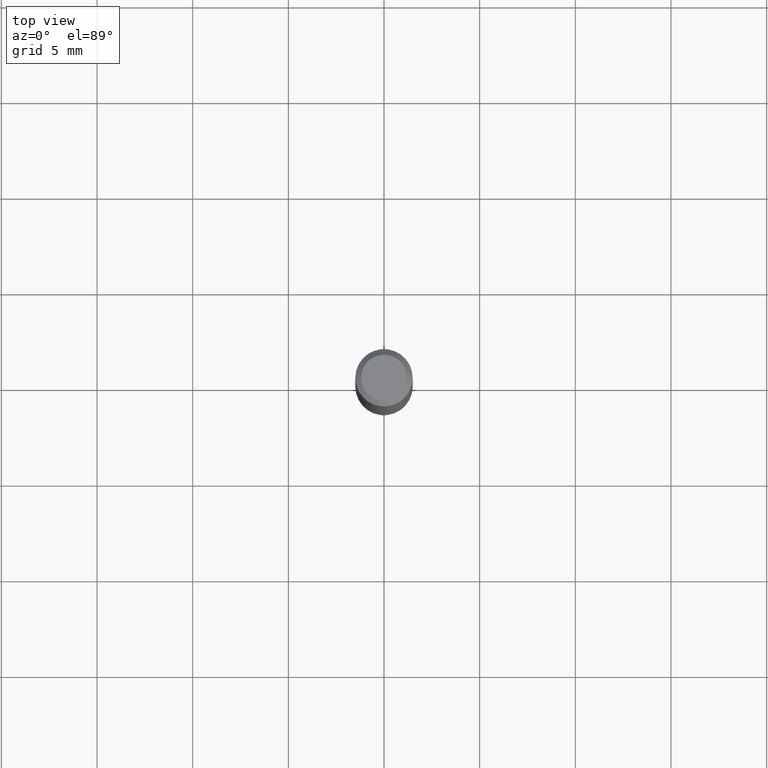
[diagram: clean part render]
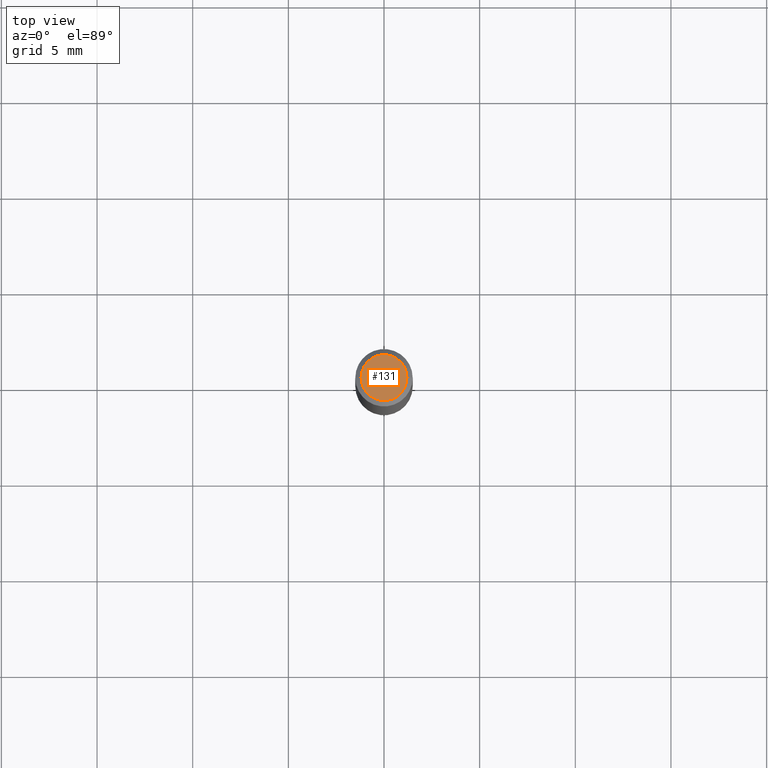
[diagram: same view with one face highlighted and labeled with its STEP entity id]
A machine part, top view. The second image highlights one B-rep face of the part: STEP entity #131.
In plain terms, the highlighted planar face has unit normal (0, -0, -1).
Its self-contained STEP definition (entity closure, byte-faithful):
#19 = CIRCLE ( 'NONE', #369, 0.04724000000000000421 ) ;
#30 = CARTESIAN_POINT ( 'NONE',  ( 4.132873053354867254E-48, -5.900647395337818946E-34, -1.690012582823346072E-19 ) ) ;
#49 = DIRECTION ( 'NONE',  ( -2.445468806185136597E-29, 3.491481338843145583E-15, 1.000000000000000000 ) ) ;
#55 = ORIENTED_EDGE ( 'NONE', *, *, #345, .T. ) ;
#66 = PLANE ( 'NONE',  #96 ) ;
#72 = CARTESIAN_POINT ( 'NONE',  ( -0.04724000000000000421, 3.504923541997677355E-16, -3.380025165670481712E-19 ) ) ;
#79 = VERTEX_POINT ( 'NONE', #72 ) ;
#96 = AXIS2_PLACEMENT_3D ( 'NONE', #30, #294, #219 ) ;
#124 = DIRECTION ( 'NONE',  ( 1.000000000000000000, -6.982962677686266711E-15, 4.876185090822587894E-29 ) ) ;
#131 = ADVANCED_FACE ( 'NONE', ( #335 ), #66, .F. ) ;
#157 = ORIENTED_EDGE ( 'NONE', *, *, #423, .T. ) ;
#159 = DIRECTION ( 'NONE',  ( -2.445468806185136597E-29, 3.491481338843145583E-15, 1.000000000000000000 ) ) ;
#213 = AXIS2_PLACEMENT_3D ( 'NONE', #456, #49, #124 ) ;
#219 = DIRECTION ( 'NONE',  ( -1.000000000000000000, 6.982962677686265922E-15, -4.876176775795935793E-29 ) ) ;
#277 = EDGE_LOOP ( 'NONE', ( #55, #157 ) ) ;
#281 = CARTESIAN_POINT ( 'NONE',  ( 8.265746106709734507E-48, -1.180129479067563789E-33, -3.380025165646692144E-19 ) ) ;
#294 = DIRECTION ( 'NONE',  ( 2.438088387897960049E-29, -3.491481338843145188E-15, -1.000000000000000000 ) ) ;
#312 = CARTESIAN_POINT ( 'NONE',  ( 0.04724000000000000421, -3.852183633974369345E-16, -3.380025165621689721E-19 ) ) ;
#335 = FACE_OUTER_BOUND ( 'NONE', #277, .T. ) ;
#345 = EDGE_CURVE ( 'NONE', #79, #376, #417, .T. ) ;
#369 = AXIS2_PLACEMENT_3D ( 'NONE', #281, #159, #422 ) ;
#376 = VERTEX_POINT ( 'NONE', #312 ) ;
#417 = CIRCLE ( 'NONE', #213, 0.04724000000000000421 ) ;
#422 = DIRECTION ( 'NONE',  ( 1.000000000000000000, -6.982962677686266711E-15, 4.876185090822587894E-29 ) ) ;
#423 = EDGE_CURVE ( 'NONE', #376, #79, #19, .T. ) ;
#456 = CARTESIAN_POINT ( 'NONE',  ( 8.265746106709734507E-48, -1.180129479067563789E-33, -3.380025165646692144E-19 ) ) ;